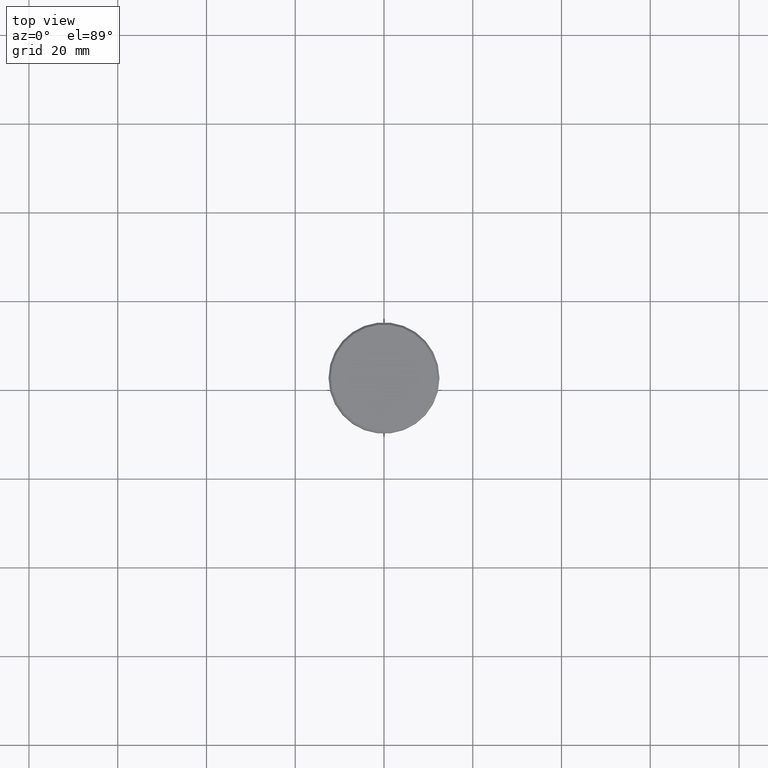
[diagram: clean part render]
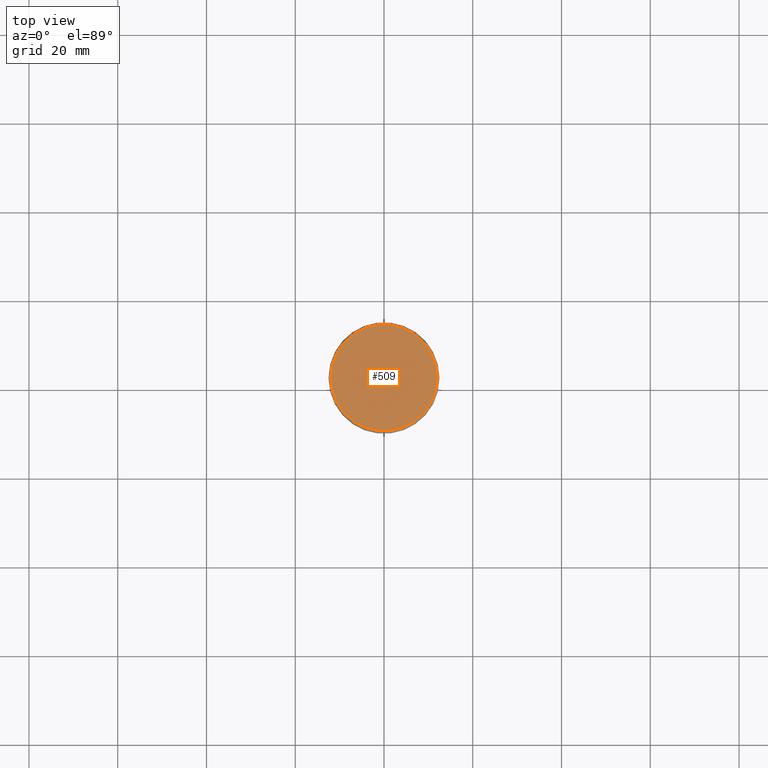
[diagram: same view with one face highlighted and labeled with its STEP entity id]
A machine part, top view. The second image highlights one B-rep face of the part: STEP entity #509.
In plain terms, the highlighted planar face has unit normal (0, -0, 1).
Its self-contained STEP definition (entity closure, byte-faithful):
#20 = DIRECTION ( 'NONE',  ( -0.000000000000000000, -0.000000000000000000, 1.000000000000000000 ) ) ;
#95 = AXIS2_PLACEMENT_3D ( 'NONE', #137, #1059, #206 ) ;
#114 = VERTEX_POINT ( 'NONE', #723 ) ;
#128 = PLANE ( 'NONE',  #894 ) ;
#137 = CARTESIAN_POINT ( 'NONE',  ( 0.000000000000000000, 0.000000000000000000, 0.000000000000000000 ) ) ;
#155 = AXIS2_PLACEMENT_3D ( 'NONE', #736, #20, #1094 ) ;
#206 = DIRECTION ( 'NONE',  ( 1.000000000000000000, 0.000000000000000000, 0.000000000000000000 ) ) ;
#304 = DIRECTION ( 'NONE',  ( 1.000000000000000000, 0.000000000000000000, 0.000000000000000000 ) ) ;
#371 = EDGE_CURVE ( 'NONE', #114, #710, #597, .T. ) ;
#417 = CARTESIAN_POINT ( 'NONE',  ( -11.99999999999999645, 0.000000000000000000, 0.000000000000000000 ) ) ;
#509 = ADVANCED_FACE ( 'NONE', ( #852 ), #128, .T. ) ;
#597 = CIRCLE ( 'NONE', #95, 11.99999999999999645 ) ;
#710 = VERTEX_POINT ( 'NONE', #417 ) ;
#723 = CARTESIAN_POINT ( 'NONE',  ( 11.99999999999999645, 1.500192328955507537E-15, 0.000000000000000000 ) ) ;
#736 = CARTESIAN_POINT ( 'NONE',  ( 0.000000000000000000, 0.000000000000000000, 0.000000000000000000 ) ) ;
#762 = CARTESIAN_POINT ( 'NONE',  ( 0.000000000000000000, 0.000000000000000000, 0.000000000000000000 ) ) ;
#792 = EDGE_LOOP ( 'NONE', ( #982, #879 ) ) ;
#852 = FACE_OUTER_BOUND ( 'NONE', #792, .T. ) ;
#879 = ORIENTED_EDGE ( 'NONE', *, *, #371, .T. ) ;
#894 = AXIS2_PLACEMENT_3D ( 'NONE', #762, #1131, #304 ) ;
#982 = ORIENTED_EDGE ( 'NONE', *, *, #1126, .T. ) ;
#1029 = CIRCLE ( 'NONE', #155, 11.99999999999999645 ) ;
#1059 = DIRECTION ( 'NONE',  ( -0.000000000000000000, -0.000000000000000000, 1.000000000000000000 ) ) ;
#1094 = DIRECTION ( 'NONE',  ( 1.000000000000000000, 0.000000000000000000, 0.000000000000000000 ) ) ;
#1126 = EDGE_CURVE ( 'NONE', #710, #114, #1029, .T. ) ;
#1131 = DIRECTION ( 'NONE',  ( 0.000000000000000000, -0.000000000000000000, 1.000000000000000000 ) ) ;